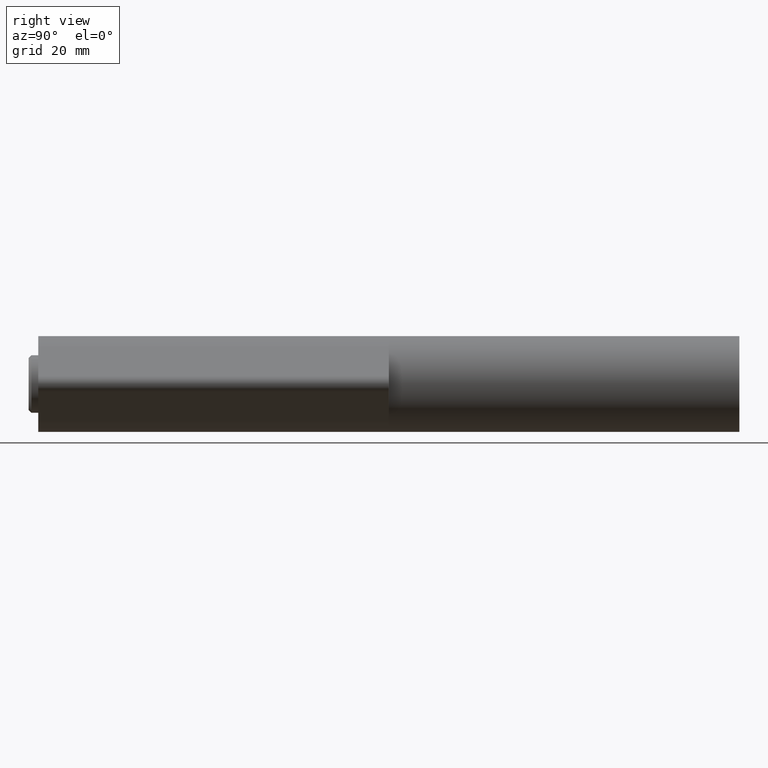
[diagram: clean part render]
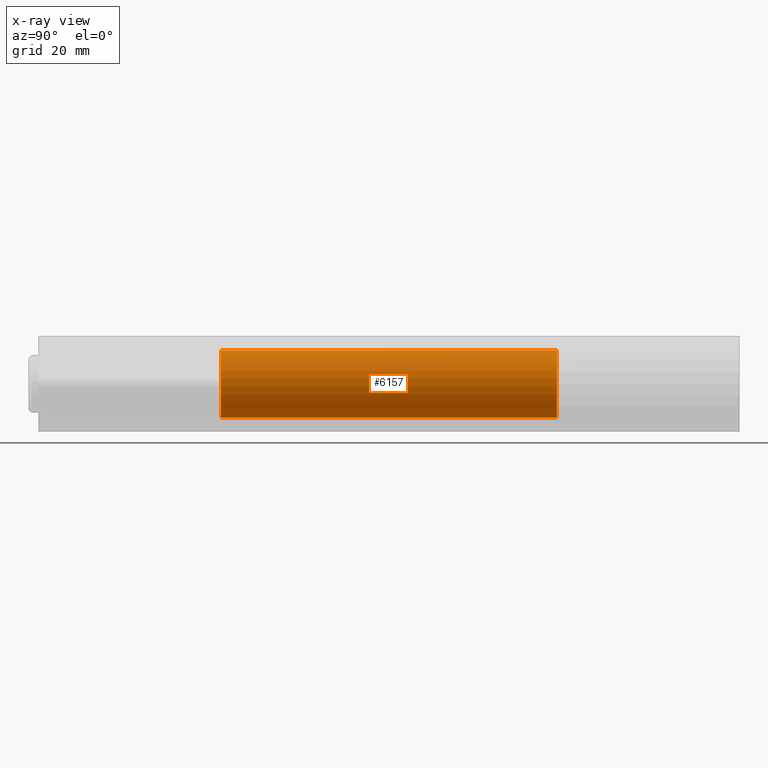
[diagram: x-ray — body ghosted, one internal face saturated and labeled with its STEP entity id]
A machine part, right view, then the same camera in x-ray: the body is ghosted and one INTERNAL B-rep face — a face not visible from any outside direction — is saturated and labeled: STEP entity #6157.
In plain terms, the highlighted cylindrical surface (bore or boss wall) has radius 7 mm, axis along (-0, -1, 0).
Its self-contained STEP definition (entity closure, byte-faithful):
#1779 = CARTESIAN_POINT ( 'NONE',  ( 0.000000000000000000, 70.00000000000000000, 0.000000000000000000 ) ) ;
#2467 = DIRECTION ( 'NONE',  ( -0.000000000000000000, -1.000000000000000000, -0.000000000000000000 ) ) ;
#2943 = DIRECTION ( 'NONE',  ( 0.000000000000000000, 0.000000000000000000, 1.000000000000000000 ) ) ;
#3371 = AXIS2_PLACEMENT_3D ( 'NONE', #8840, #2467, #11024 ) ;
#4139 = CARTESIAN_POINT ( 'NONE',  ( 0.000000000000000000, 0.000000000000000000, 0.000000000000000000 ) ) ;
#4324 = VERTEX_POINT ( 'NONE', #9066 ) ;
#4791 = EDGE_CURVE ( 'NONE', #4324, #4324, #8133, .T. ) ;
#5035 = EDGE_CURVE ( 'NONE', #9403, #9403, #9642, .T. ) ;
#5058 = FACE_OUTER_BOUND ( 'NONE', #11362, .T. ) ;
#6061 = DIRECTION ( 'NONE',  ( 0.000000000000000000, 1.000000000000000000, 0.000000000000000000 ) ) ;
#6099 = DIRECTION ( 'NONE',  ( 0.000000000000000000, 0.000000000000000000, 1.000000000000000000 ) ) ;
#6157 = ADVANCED_FACE ( 'NONE', ( #13843, #5058 ), #8119, .T. ) ;
#7394 = DIRECTION ( 'NONE',  ( 0.000000000000000000, 1.000000000000000000, 0.000000000000000000 ) ) ;
#7851 = EDGE_LOOP ( 'NONE', ( #11657 ) ) ;
#8119 = CYLINDRICAL_SURFACE ( 'NONE', #3371, 7.000000000000000888 ) ;
#8133 = CIRCLE ( 'NONE', #10493, 7.000000000000000888 ) ;
#8840 = CARTESIAN_POINT ( 'NONE',  ( 0.000000000000000000, 70.00000000000000000, 0.000000000000000000 ) ) ;
#9066 = CARTESIAN_POINT ( 'NONE',  ( 0.000000000000000000, 70.00000000000000000, 7.000000000000000888 ) ) ;
#9403 = VERTEX_POINT ( 'NONE', #12230 ) ;
#9642 = CIRCLE ( 'NONE', #11040, 7.000000000000000888 ) ;
#10493 = AXIS2_PLACEMENT_3D ( 'NONE', #1779, #6061, #6099 ) ;
#11024 = DIRECTION ( 'NONE',  ( 0.000000000000000000, 0.000000000000000000, -1.000000000000000000 ) ) ;
#11040 = AXIS2_PLACEMENT_3D ( 'NONE', #4139, #7394, #2943 ) ;
#11362 = EDGE_LOOP ( 'NONE', ( #13771 ) ) ;
#11657 = ORIENTED_EDGE ( 'NONE', *, *, #4791, .F. ) ;
#12230 = CARTESIAN_POINT ( 'NONE',  ( 0.000000000000000000, 0.000000000000000000, 7.000000000000000888 ) ) ;
#13771 = ORIENTED_EDGE ( 'NONE', *, *, #5035, .T. ) ;
#13843 = FACE_OUTER_BOUND ( 'NONE', #7851, .T. ) ;